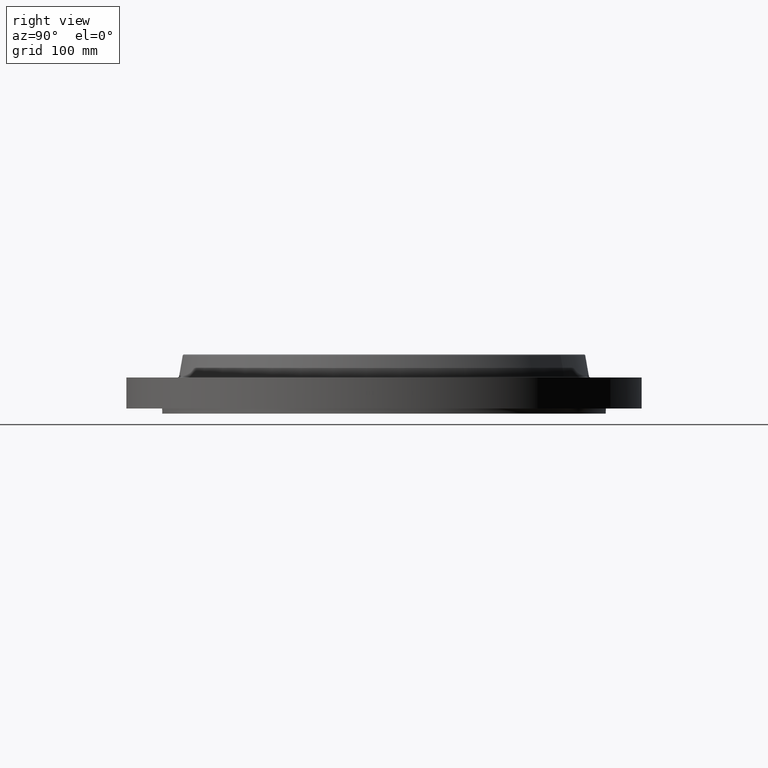
[diagram: clean part render]
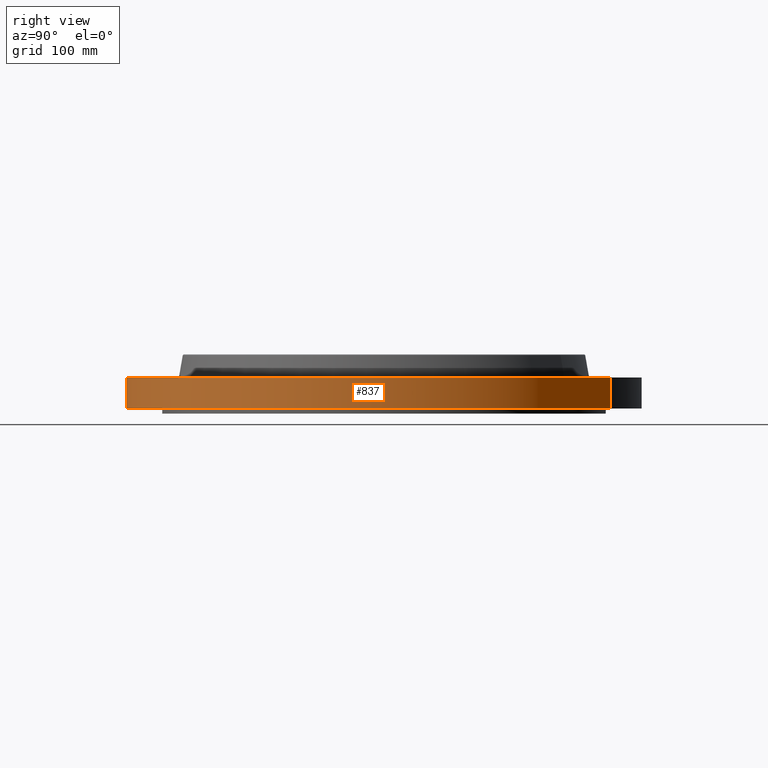
[diagram: same view with one face highlighted and labeled with its STEP entity id]
A machine part, right view. The second image highlights one B-rep face of the part: STEP entity #837.
In plain terms, the highlighted cylindrical surface (partial cylindrical patch) has radius 317.5 mm, axis along (0, 0, -1).
Its self-contained STEP definition (entity closure, byte-faithful):
#415=AXIS2_PLACEMENT_3D('Circle Axis2P3D',#413,#414,$) ;
#798=AXIS2_PLACEMENT_3D('Cylinder Axis2P3D',#795,#796,#797) ;
#828=AXIS2_PLACEMENT_3D('Circle Axis2P3D',#826,#827,$) ;
#408=CARTESIAN_POINT('Vertex',(-5.99281923258,-10.9697820237,1.39870617276E-015)) ;
#410=CARTESIAN_POINT('Vertex',(5.99281923258,10.9697820237,1.39870617276E-015)) ;
#413=CARTESIAN_POINT('Axis2P3D Location',(0.,0.,0.)) ;
#795=CARTESIAN_POINT('Axis2P3D Location',(0.,0.,1.185)) ;
#800=CARTESIAN_POINT('Line Origine',(-5.99281923258,-10.9697820237,0.750000000003)) ;
#804=CARTESIAN_POINT('Vertex',(-5.99281923258,-10.9697820237,1.50000000001)) ;
#811=CARTESIAN_POINT('Vertex',(5.99281923258,10.9697820237,1.50000000001)) ;
#814=CARTESIAN_POINT('Line Origine',(5.99281923258,10.9697820237,0.750000000003)) ;
#826=CARTESIAN_POINT('Axis2P3D Location',(0.,0.,1.50000000001)) ;
#414=DIRECTION('Axis2P3D Direction',(0.,0.,-0.0393700787402)) ;
#796=DIRECTION('Axis2P3D Direction',(0.,0.,-0.0393700787402)) ;
#797=DIRECTION('Axis2P3D XDirection',(0.0188750212049,0.0345504945626,0.)) ;
#801=DIRECTION('Vector Direction',(0.,0.,-0.0393700787402)) ;
#815=DIRECTION('Vector Direction',(0.,0.,-0.0393700787402)) ;
#827=DIRECTION('Axis2P3D Direction',(0.,0.,-0.0393700787402)) ;
#802=VECTOR('Line Direction',#801,0.0393700787402) ;
#816=VECTOR('Line Direction',#815,0.0393700787402) ;
#832=ORIENTED_EDGE('',*,*,#417,.F.) ;
#833=ORIENTED_EDGE('',*,*,#818,.T.) ;
#834=ORIENTED_EDGE('',*,*,#830,.T.) ;
#835=ORIENTED_EDGE('',*,*,#806,.F.) ;
#837=ADVANCED_FACE('PartBody',(#836),#799,.T.) ;
#416=CIRCLE('generated circle',#415,12.5000000001) ;
#829=CIRCLE('generated circle',#828,12.5000000001) ;
#799=CYLINDRICAL_SURFACE('generated cylinder',#798,12.5000000001) ;
#417=EDGE_CURVE('',#411,#409,#416,.T.) ;
#806=EDGE_CURVE('',#409,#805,#803,.F.) ;
#818=EDGE_CURVE('',#411,#812,#817,.F.) ;
#830=EDGE_CURVE('',#812,#805,#829,.T.) ;
#831=EDGE_LOOP('',(#832,#833,#834,#835)) ;
#836=FACE_OUTER_BOUND('',#831,.T.) ;
#803=LINE('Line',#800,#802) ;
#817=LINE('Line',#814,#816) ;
#409=VERTEX_POINT('',#408) ;
#411=VERTEX_POINT('',#410) ;
#805=VERTEX_POINT('',#804) ;
#812=VERTEX_POINT('',#811) ;